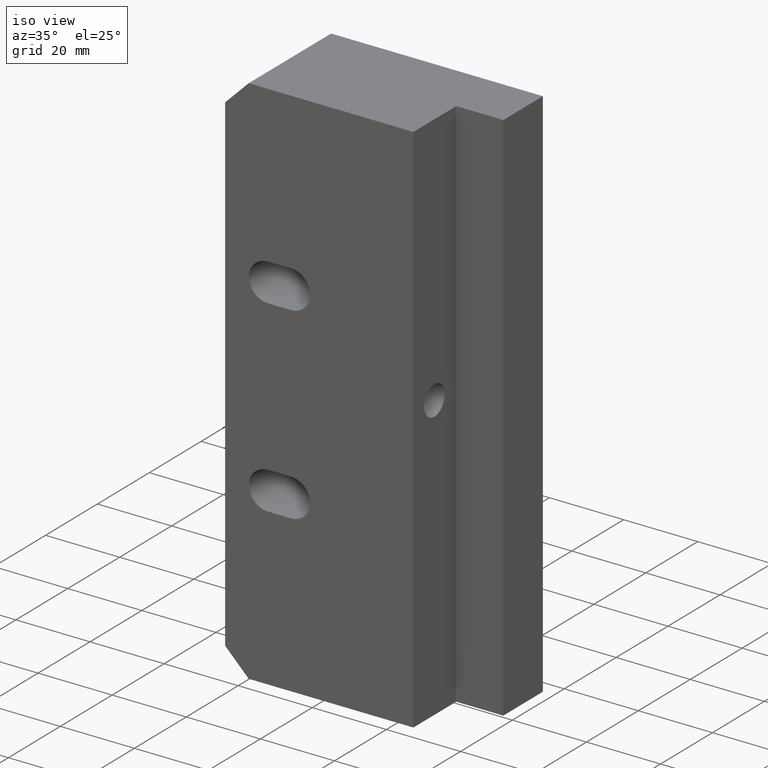
[diagram: clean part render]
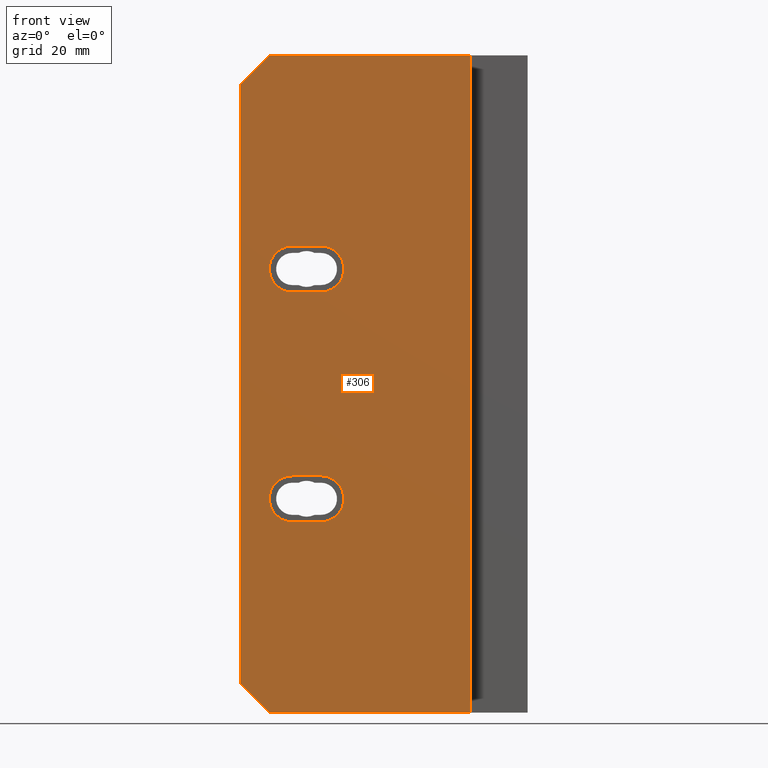
[diagram: tour spotlight — one face highlighted and labeled with its STEP entity id]
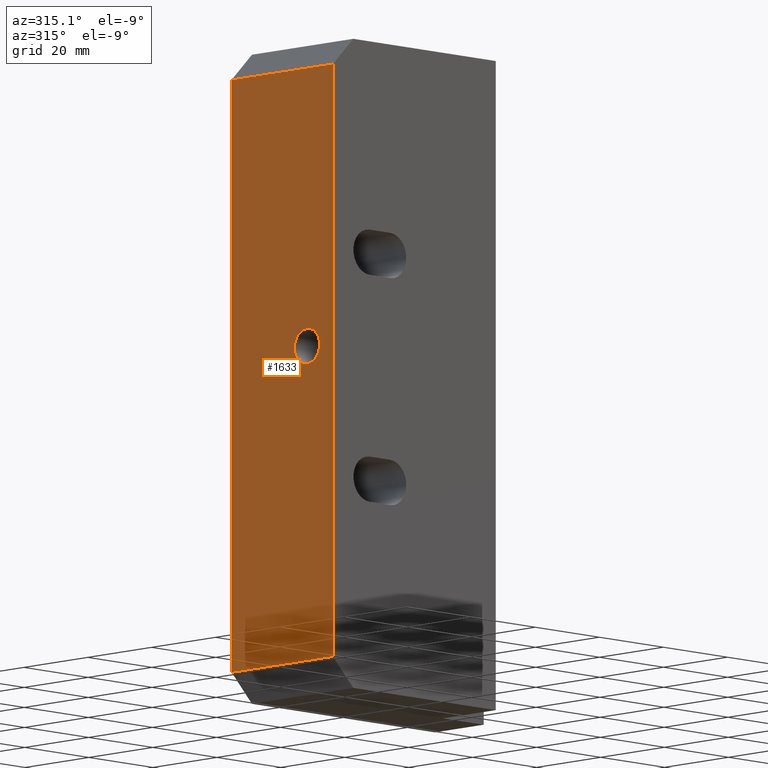
[diagram: tour spotlight — one face highlighted and labeled with its STEP entity id]
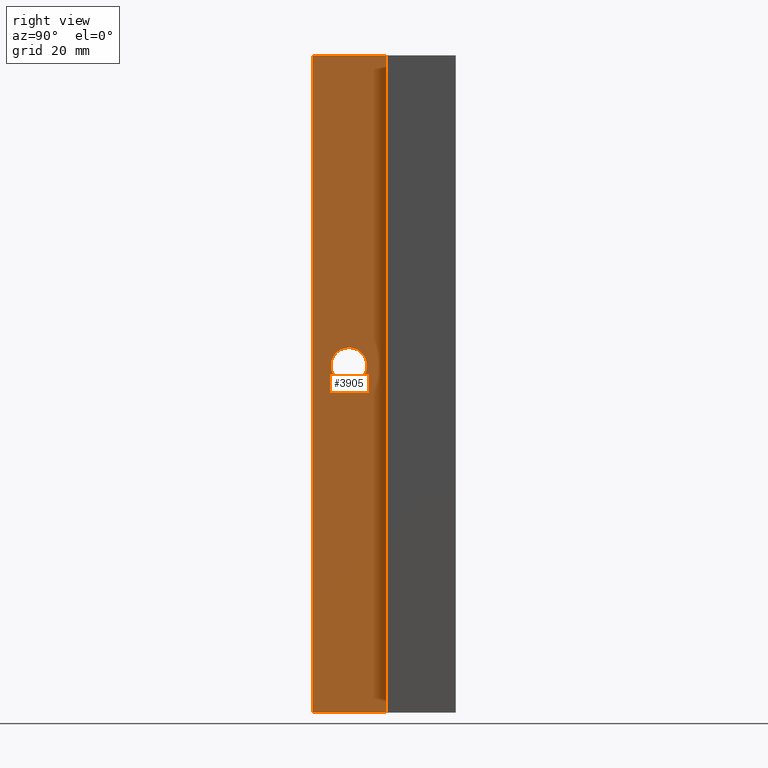
[diagram: tour spotlight — one face highlighted and labeled with its STEP entity id]
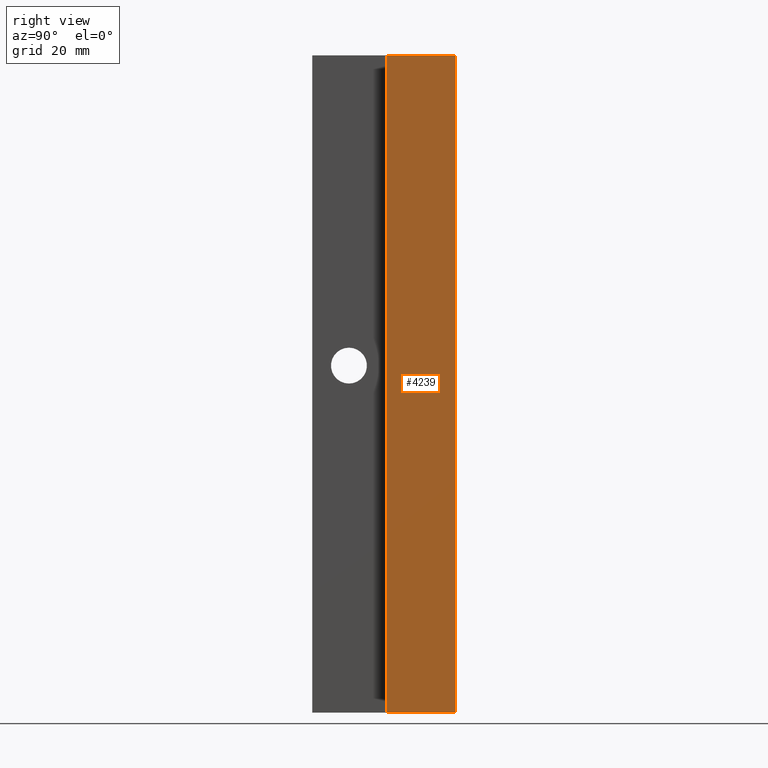
[diagram: tour spotlight — one face highlighted and labeled with its STEP entity id]
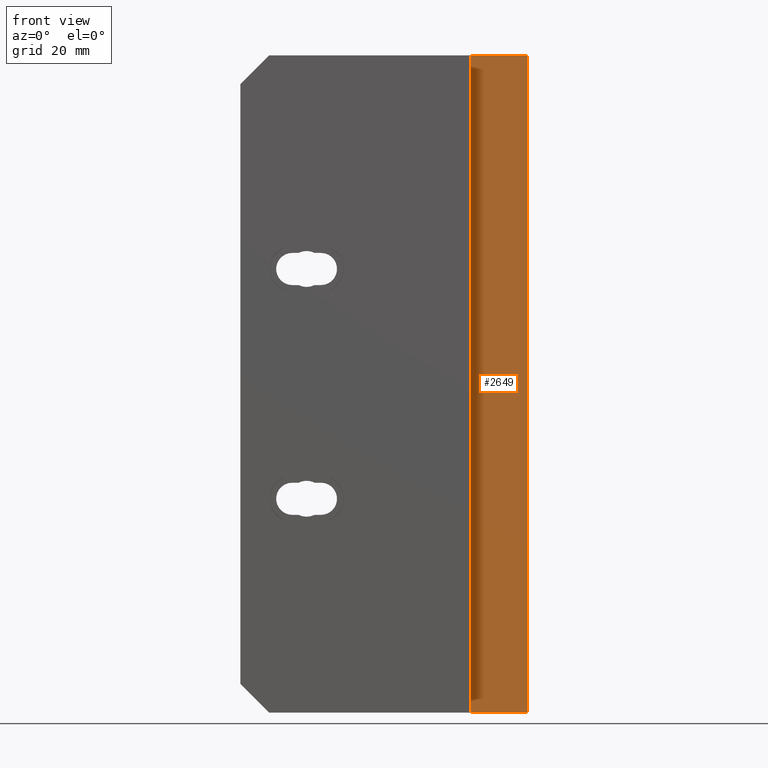
[diagram: tour spotlight — one face highlighted and labeled with its STEP entity id]
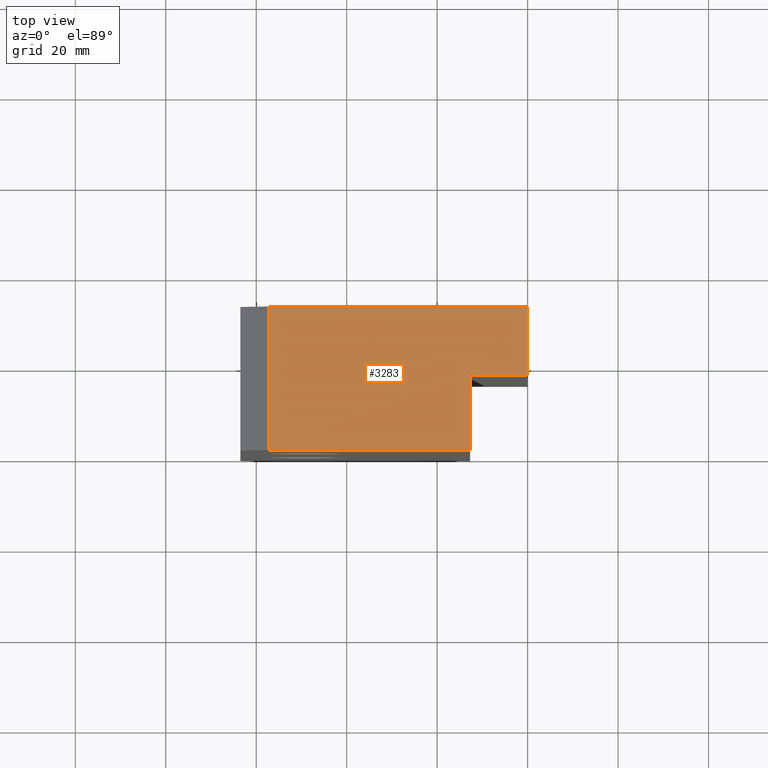
[diagram: tour spotlight — one face highlighted and labeled with its STEP entity id]
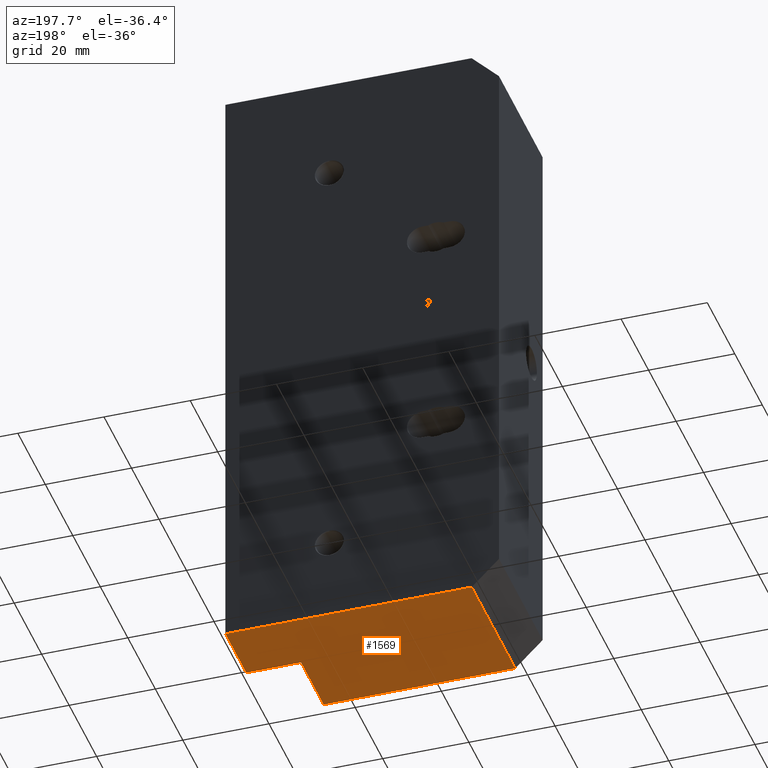
[diagram: tour spotlight — one face highlighted and labeled with its STEP entity id]
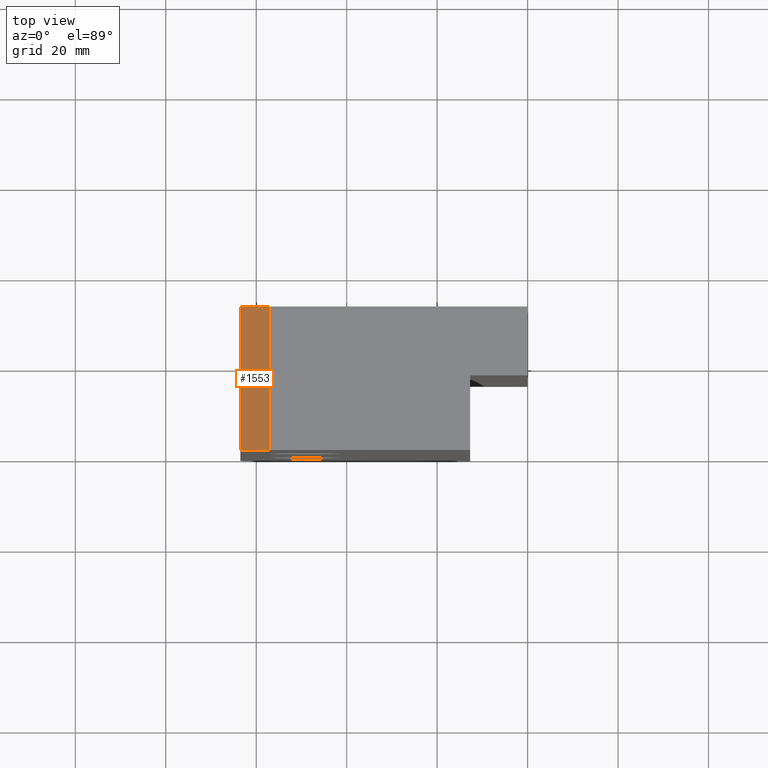
[diagram: tour spotlight — one face highlighted and labeled with its STEP entity id]
A machine part: a face-by-face anatomy tour. The part has 73 B-rep faces; the first image is the clean iso view, then the 8 largest visible faces are spotlighted one at a time (largest first), each with its STEP entity span.

Face 1 — front view, entity #306. In plain terms, the highlighted planar face has unit normal (0, -1, 0).
Definition (entity closure, byte-faithful):
#1 = VERTEX_POINT ( 'NONE', #1374 ) ;
#13 = VERTEX_POINT ( 'NONE', #2380 ) ;
#65 = EDGE_CURVE ( 'NONE', #1, #258, #1172, .T. ) ;
#88 = ORIENTED_EDGE ( 'NONE', *, *, #2915, .F. ) ;
#104 = ORIENTED_EDGE ( 'NONE', *, *, #1020, .F. ) ;
#162 = VECTOR ( 'NONE', #915, 39.37007874015748100 ) ;
#199 = AXIS2_PLACEMENT_3D ( 'NONE', #3077, #1083, #3405 ) ;
#225 = DIRECTION ( 'NONE',  ( 0.0000000000000000000, 0.0000000000000000000, -1.000000000000000000 ) ) ;
#239 = DIRECTION ( 'NONE',  ( 0.0000000000000000000, -1.000000000000000000, 0.0000000000000000000 ) ) ;
#258 = VERTEX_POINT ( 'NONE', #2504 ) ;
#266 = VECTOR ( 'NONE', #1563, 39.37007874015748100 ) ;
#306 = ADVANCED_FACE ( 'NONE', ( #2426, #3306, #4088 ), #1878, .T. ) ;
#432 = CARTESIAN_POINT ( 'NONE',  ( -2.249999999999999600, 0.0000000000000000000, -5.719999999999999800 ) ) ;
#475 = CARTESIAN_POINT ( 'NONE',  ( -2.048734939028663800, -0.0000000000000000000, -3.658999999999444300 ) ) ;
#496 = CARTESIAN_POINT ( 'NONE',  ( -2.500000000000000000, 0.0000000000000000000, -5.470000000000000600 ) ) ;
#552 = LINE ( 'NONE', #1401, #2307 ) ;
#567 = ORIENTED_EDGE ( 'NONE', *, *, #1566, .F. ) ;
#579 = VECTOR ( 'NONE', #1791, 39.37007874015748100 ) ;
#591 = CARTESIAN_POINT ( 'NONE',  ( -2.499999999999999600, 0.0000000000000000000, -0.2500000000000008900 ) ) ;
#780 = LINE ( 'NONE', #475, #579 ) ;
#828 = EDGE_CURVE ( 'NONE', #13, #2529, #1579, .T. ) ;
#837 = ORIENTED_EDGE ( 'NONE', *, *, #999, .F. ) ;
#866 = CARTESIAN_POINT ( 'NONE',  ( -2.249999999999999600, 0.0000000000000000000, 2.048885995248195600E-017 ) ) ;
#869 = ORIENTED_EDGE ( 'NONE', *, *, #3664, .F. ) ;
#897 = DIRECTION ( 'NONE',  ( 0.0000000000000000000, -1.000000000000000000, 0.0000000000000000000 ) ) ;
#915 = DIRECTION ( 'NONE',  ( 0.7071067811865486800, -0.0000000000000000000, -0.7071067811865463500 ) ) ;
#999 = EDGE_CURVE ( 'NONE', #3524, #2286, #552, .T. ) ;
#1020 = EDGE_CURVE ( 'NONE', #258, #2036, #1319, .T. ) ;
#1066 = DIRECTION ( 'NONE',  ( -1.000000000000000000, -0.0000000000000000000, -0.0000000000000000000 ) ) ;
#1071 = ORIENTED_EDGE ( 'NONE', *, *, #3713, .T. ) ;
#1083 = DIRECTION ( 'NONE',  ( 0.0000000000000000000, -1.000000000000000000, 0.0000000000000000000 ) ) ;
#1144 = CIRCLE ( 'NONE', #1514, 0.2000000000000000400 ) ;
#1172 = LINE ( 'NONE', #3398, #1277 ) ;
#1200 = CARTESIAN_POINT ( 'NONE',  ( -2.048734939028663800, -0.0000000000000000000, -3.658999999999444300 ) ) ;
#1213 = EDGE_CURVE ( 'NONE', #1224, #13, #2790, .T. ) ;
#1224 = VERTEX_POINT ( 'NONE', #1200 ) ;
#1236 = AXIS2_PLACEMENT_3D ( 'NONE', #4210, #239, #2549 ) ;
#1263 = LINE ( 'NONE', #1593, #3036 ) ;
#1277 = VECTOR ( 'NONE', #3733, 39.37007874015748100 ) ;
#1299 = AXIS2_PLACEMENT_3D ( 'NONE', #4189, #2189, #225 ) ;
#1318 = EDGE_CURVE ( 'NONE', #4083, #2286, #1263, .T. ) ;
#1319 = CIRCLE ( 'NONE', #199, 0.2000000000000000400 ) ;
#1342 = ORIENTED_EDGE ( 'NONE', *, *, #3174, .F. ) ;
#1374 = CARTESIAN_POINT ( 'NONE',  ( -1.798734939028664200, -0.0000000000000000000, -1.658999999999444900 ) ) ;
#1397 = CARTESIAN_POINT ( 'NONE',  ( -2.048734939028663800, 0.0000000000000000000, -2.058999999999445100 ) ) ;
#1401 = CARTESIAN_POINT ( 'NONE',  ( -2.500000000000000000, 0.0000000000000000000, -5.719999999999999800 ) ) ;
#1457 = LINE ( 'NONE', #1587, #3997 ) ;
#1478 = EDGE_LOOP ( 'NONE', ( #2484, #2012, #567, #2143 ) ) ;
#1510 = ORIENTED_EDGE ( 'NONE', *, *, #2295, .F. ) ;
#1514 = AXIS2_PLACEMENT_3D ( 'NONE', #1576, #3906, #1916 ) ;
#1522 = CIRCLE ( 'NONE', #1882, 0.2000000000000000400 ) ;
#1563 = DIRECTION ( 'NONE',  ( 1.000000000000000000, 0.0000000000000000000, 1.639108796198557400E-016 ) ) ;
#1566 = EDGE_CURVE ( 'NONE', #2529, #3943, #1522, .T. ) ;
#1576 = CARTESIAN_POINT ( 'NONE',  ( -1.798734939028664200, -0.0000000000000000000, -1.858999999999444900 ) ) ;
#1579 = LINE ( 'NONE', #3289, #3251 ) ;
#1587 = CARTESIAN_POINT ( 'NONE',  ( -0.5000000000000000000, -0.0000000000000000000, -6.123233995736774700E-017 ) ) ;
#1593 = CARTESIAN_POINT ( 'NONE',  ( -3.985000000000005200, 0.0000000000000000000, -1.735000000000013600 ) ) ;
#1750 = EDGE_LOOP ( 'NONE', ( #104, #2688, #1342, #1929 ) ) ;
#1791 = DIRECTION ( 'NONE',  ( -1.000000000000000000, -0.0000000000000000000, -0.0000000000000000000 ) ) ;
#1878 = PLANE ( 'NONE',  #1236 ) ;
#1882 = AXIS2_PLACEMENT_3D ( 'NONE', #2888, #897, #3227 ) ;
#1916 = DIRECTION ( 'NONE',  ( 0.0000000000000000000, 0.0000000000000000000, -1.000000000000000000 ) ) ;
#1929 = ORIENTED_EDGE ( 'NONE', *, *, #2419, .F. ) ;
#2008 = LINE ( 'NONE', #3228, #266 ) ;
#2012 = ORIENTED_EDGE ( 'NONE', *, *, #2990, .F. ) ;
#2036 = VERTEX_POINT ( 'NONE', #1397 ) ;
#2046 = CARTESIAN_POINT ( 'NONE',  ( -0.5000000000000001100, 0.0000000000000000000, 3.278217592397113900E-016 ) ) ;
#2112 = VERTEX_POINT ( 'NONE', #2770 ) ;
#2143 = ORIENTED_EDGE ( 'NONE', *, *, #828, .F. ) ;
#2189 = DIRECTION ( 'NONE',  ( 0.0000000000000000000, -1.000000000000000000, 0.0000000000000000000 ) ) ;
#2286 = VERTEX_POINT ( 'NONE', #591 ) ;
#2295 = EDGE_CURVE ( 'NONE', #2914, #2112, #1457, .T. ) ;
#2307 = VECTOR ( 'NONE', #3721, 39.37007874015748100 ) ;
#2338 = LINE ( 'NONE', #2347, #3797 ) ;
#2347 = CARTESIAN_POINT ( 'NONE',  ( -2.048734939028663800, -0.0000000000000000000, -2.058999999999445100 ) ) ;
#2380 = CARTESIAN_POINT ( 'NONE',  ( -2.048734939028663800, 0.0000000000000000000, -4.058999999999444200 ) ) ;
#2419 = EDGE_CURVE ( 'NONE', #2036, #3877, #2338, .T. ) ;
#2426 = FACE_BOUND ( 'NONE', #1750, .T. ) ;
#2484 = ORIENTED_EDGE ( 'NONE', *, *, #1213, .F. ) ;
#2504 = CARTESIAN_POINT ( 'NONE',  ( -2.048734939028663800, -0.0000000000000000000, -1.658999999999444900 ) ) ;
#2529 = VERTEX_POINT ( 'NONE', #3411 ) ;
#2549 = DIRECTION ( 'NONE',  ( 0.0000000000000000000, -0.0000000000000000000, -1.000000000000000000 ) ) ;
#2566 = EDGE_LOOP ( 'NONE', ( #837, #1071, #88, #1510, #869, #3154 ) ) ;
#2688 = ORIENTED_EDGE ( 'NONE', *, *, #65, .F. ) ;
#2730 = CARTESIAN_POINT ( 'NONE',  ( -1.798734939028664200, -0.0000000000000000000, -3.658999999999444300 ) ) ;
#2770 = CARTESIAN_POINT ( 'NONE',  ( -0.4999999999999993300, -0.0000000000000000000, -5.719999999999999800 ) ) ;
#2790 = CIRCLE ( 'NONE', #1299, 0.2000000000000000400 ) ;
#2888 = CARTESIAN_POINT ( 'NONE',  ( -1.798734939028664200, -0.0000000000000000000, -3.858999999999444400 ) ) ;
#2914 = VERTEX_POINT ( 'NONE', #2046 ) ;
#2915 = EDGE_CURVE ( 'NONE', #2112, #2950, #3434, .T. ) ;
#2950 = VERTEX_POINT ( 'NONE', #432 ) ;
#2990 = EDGE_CURVE ( 'NONE', #3943, #1224, #780, .T. ) ;
#3021 = DIRECTION ( 'NONE',  ( 1.000000000000000000, 0.0000000000000000000, 0.0000000000000000000 ) ) ;
#3036 = VECTOR ( 'NONE', #4245, 39.37007874015748100 ) ;
#3077 = CARTESIAN_POINT ( 'NONE',  ( -2.048734939028663800, -0.0000000000000000000, -1.858999999999444900 ) ) ;
#3154 = ORIENTED_EDGE ( 'NONE', *, *, #1318, .T. ) ;
#3174 = EDGE_CURVE ( 'NONE', #3877, #1, #1144, .T. ) ;
#3227 = DIRECTION ( 'NONE',  ( 0.0000000000000000000, 0.0000000000000000000, -1.000000000000000000 ) ) ;
#3228 = CARTESIAN_POINT ( 'NONE',  ( -2.499999999999999600, 0.0000000000000000000, 0.0000000000000000000 ) ) ;
#3237 = CARTESIAN_POINT ( 'NONE',  ( -1.124999999999996000, 0.0000000000000000000, -6.844999999999999800 ) ) ;
#3238 = DIRECTION ( 'NONE',  ( 1.193989507720394800E-016, 0.0000000000000000000, -1.000000000000000000 ) ) ;
#3251 = VECTOR ( 'NONE', #4290, 39.37007874015748100 ) ;
#3289 = CARTESIAN_POINT ( 'NONE',  ( -2.048734939028663800, -0.0000000000000000000, -4.058999999999444200 ) ) ;
#3306 = FACE_BOUND ( 'NONE', #1478, .T. ) ;
#3398 = CARTESIAN_POINT ( 'NONE',  ( -2.048734939028663800, -0.0000000000000000000, -1.658999999999444900 ) ) ;
#3405 = DIRECTION ( 'NONE',  ( 0.0000000000000000000, 0.0000000000000000000, -1.000000000000000000 ) ) ;
#3411 = CARTESIAN_POINT ( 'NONE',  ( -1.798734939028664200, 0.0000000000000000000, -4.058999999999444200 ) ) ;
#3434 = LINE ( 'NONE', #4038, #4212 ) ;
#3524 = VERTEX_POINT ( 'NONE', #496 ) ;
#3646 = CARTESIAN_POINT ( 'NONE',  ( -1.798734939028664200, 0.0000000000000000000, -2.058999999999445100 ) ) ;
#3664 = EDGE_CURVE ( 'NONE', #4083, #2914, #2008, .T. ) ;
#3677 = LINE ( 'NONE', #3237, #162 ) ;
#3713 = EDGE_CURVE ( 'NONE', #3524, #2950, #3677, .T. ) ;
#3721 = DIRECTION ( 'NONE',  ( 9.551916061763159600E-017, 0.0000000000000000000, 1.000000000000000000 ) ) ;
#3733 = DIRECTION ( 'NONE',  ( -1.000000000000000000, -0.0000000000000000000, -0.0000000000000000000 ) ) ;
#3797 = VECTOR ( 'NONE', #3021, 39.37007874015748100 ) ;
#3877 = VERTEX_POINT ( 'NONE', #3646 ) ;
#3906 = DIRECTION ( 'NONE',  ( 0.0000000000000000000, -1.000000000000000000, 0.0000000000000000000 ) ) ;
#3943 = VERTEX_POINT ( 'NONE', #2730 ) ;
#3997 = VECTOR ( 'NONE', #3238, 39.37007874015748100 ) ;
#4038 = CARTESIAN_POINT ( 'NONE',  ( -2.500000000000000000, 0.0000000000000000000, -5.719999999999999800 ) ) ;
#4083 = VERTEX_POINT ( 'NONE', #866 ) ;
#4088 = FACE_OUTER_BOUND ( 'NONE', #2566, .T. ) ;
#4189 = CARTESIAN_POINT ( 'NONE',  ( -2.048734939028663800, -0.0000000000000000000, -3.858999999999444400 ) ) ;
#4210 = CARTESIAN_POINT ( 'NONE',  ( 0.0000000000000000000, 0.0000000000000000000, -5.719999999999999800 ) ) ;
#4212 = VECTOR ( 'NONE', #1066, 39.37007874015748100 ) ;
#4245 = DIRECTION ( 'NONE',  ( -0.7071067811865459100, -0.0000000000000000000, -0.7071067811865491300 ) ) ;
#4290 = DIRECTION ( 'NONE',  ( 1.000000000000000000, 0.0000000000000000000, 0.0000000000000000000 ) ) ;

Face 2 — auxiliary view, entity #1633. In plain terms, the highlighted planar face has unit normal (1, 0, -0).
Definition (entity closure, byte-faithful):
#86 = CARTESIAN_POINT ( 'NONE',  ( -2.499999999999999600, 1.250000000000000000, -0.2500000000000008900 ) ) ;
#196 = CARTESIAN_POINT ( 'NONE',  ( -2.499999999999999600, 0.3200000000000000100, -2.700000000000000200 ) ) ;
#268 = CARTESIAN_POINT ( 'NONE',  ( -2.499999999999999600, 0.3200000000000000100, -2.543750000000000600 ) ) ;
#375 = VERTEX_POINT ( 'NONE', #268 ) ;
#401 = DIRECTION ( 'NONE',  ( -1.000000000000000000, -0.0000000000000000000, 9.551916061763158300E-017 ) ) ;
#421 = DIRECTION ( 'NONE',  ( 0.0000000000000000000, 1.000000000000000000, 0.0000000000000000000 ) ) ;
#496 = CARTESIAN_POINT ( 'NONE',  ( -2.500000000000000000, 0.0000000000000000000, -5.470000000000000600 ) ) ;
#528 = DIRECTION ( 'NONE',  ( 0.0000000000000000000, 0.0000000000000000000, 1.000000000000000000 ) ) ;
#552 = LINE ( 'NONE', #1401, #2307 ) ;
#591 = CARTESIAN_POINT ( 'NONE',  ( -2.499999999999999600, 0.0000000000000000000, -0.2500000000000008900 ) ) ;
#601 = CARTESIAN_POINT ( 'NONE',  ( -2.500000000000000000, 1.250000000000000000, -5.719999999999999800 ) ) ;
#607 = EDGE_CURVE ( 'NONE', #1426, #3524, #3099, .T. ) ;
#622 = VERTEX_POINT ( 'NONE', #4017 ) ;
#784 = ORIENTED_EDGE ( 'NONE', *, *, #1354, .F. ) ;
#848 = CARTESIAN_POINT ( 'NONE',  ( -2.499999999999999600, 1.250000000000000000, -0.2500000000000008900 ) ) ;
#999 = EDGE_CURVE ( 'NONE', #3524, #2286, #552, .T. ) ;
#1017 = EDGE_LOOP ( 'NONE', ( #3520, #4160 ) ) ;
#1131 = EDGE_LOOP ( 'NONE', ( #784, #4145, #1395, #2273 ) ) ;
#1292 = VECTOR ( 'NONE', #421, 39.37007874015748100 ) ;
#1354 = EDGE_CURVE ( 'NONE', #1426, #3055, #3707, .T. ) ;
#1395 = ORIENTED_EDGE ( 'NONE', *, *, #999, .T. ) ;
#1401 = CARTESIAN_POINT ( 'NONE',  ( -2.500000000000000000, 0.0000000000000000000, -5.719999999999999800 ) ) ;
#1426 = VERTEX_POINT ( 'NONE', #3484 ) ;
#1633 = ADVANCED_FACE ( 'NONE', ( #2087, #3859 ), #3600, .F. ) ;
#1696 = CARTESIAN_POINT ( 'NONE',  ( -2.500000000000000000, 1.250000000000000000, -5.470000000000000600 ) ) ;
#1939 = AXIS2_PLACEMENT_3D ( 'NONE', #2377, #401, #2718 ) ;
#1942 = DIRECTION ( 'NONE',  ( -9.551916061763159600E-017, 0.0000000000000000000, -1.000000000000000000 ) ) ;
#2087 = FACE_OUTER_BOUND ( 'NONE', #1131, .T. ) ;
#2273 = ORIENTED_EDGE ( 'NONE', *, *, #3424, .T. ) ;
#2286 = VERTEX_POINT ( 'NONE', #591 ) ;
#2307 = VECTOR ( 'NONE', #3721, 39.37007874015748100 ) ;
#2309 = VECTOR ( 'NONE', #2388, 39.37007874015748100 ) ;
#2377 = CARTESIAN_POINT ( 'NONE',  ( -2.499999999999999600, 0.3200000000000000100, -2.700000000000000200 ) ) ;
#2388 = DIRECTION ( 'NONE',  ( 0.0000000000000000000, -1.000000000000000000, 0.0000000000000000000 ) ) ;
#2466 = EDGE_CURVE ( 'NONE', #622, #375, #3685, .T. ) ;
#2506 = DIRECTION ( 'NONE',  ( -1.000000000000000000, -0.0000000000000000000, 9.551916061763158300E-017 ) ) ;
#2718 = DIRECTION ( 'NONE',  ( 0.0000000000000000000, 0.0000000000000000000, 1.000000000000000000 ) ) ;
#2748 = CIRCLE ( 'NONE', #2917, 0.1562499999999997200 ) ;
#2832 = VECTOR ( 'NONE', #3760, 39.37007874015748100 ) ;
#2917 = AXIS2_PLACEMENT_3D ( 'NONE', #196, #2506, #528 ) ;
#3055 = VERTEX_POINT ( 'NONE', #848 ) ;
#3097 = CARTESIAN_POINT ( 'NONE',  ( -2.500000000000000000, 1.250000000000000000, -5.719999999999999800 ) ) ;
#3099 = LINE ( 'NONE', #1696, #2309 ) ;
#3424 = EDGE_CURVE ( 'NONE', #2286, #3055, #4262, .T. ) ;
#3484 = CARTESIAN_POINT ( 'NONE',  ( -2.500000000000000000, 1.250000000000000000, -5.470000000000000600 ) ) ;
#3520 = ORIENTED_EDGE ( 'NONE', *, *, #4054, .F. ) ;
#3524 = VERTEX_POINT ( 'NONE', #496 ) ;
#3600 = PLANE ( 'NONE',  #4114 ) ;
#3685 = CIRCLE ( 'NONE', #1939, 0.1562499999999997200 ) ;
#3707 = LINE ( 'NONE', #3097, #2832 ) ;
#3721 = DIRECTION ( 'NONE',  ( 9.551916061763159600E-017, 0.0000000000000000000, 1.000000000000000000 ) ) ;
#3760 = DIRECTION ( 'NONE',  ( 9.551916061763159600E-017, 0.0000000000000000000, 1.000000000000000000 ) ) ;
#3859 = FACE_BOUND ( 'NONE', #1017, .T. ) ;
#3931 = DIRECTION ( 'NONE',  ( 1.000000000000000000, 0.0000000000000000000, -9.551916061763159600E-017 ) ) ;
#4017 = CARTESIAN_POINT ( 'NONE',  ( -2.499999999999999600, 0.3200000000000000100, -2.856249999999999700 ) ) ;
#4054 = EDGE_CURVE ( 'NONE', #375, #622, #2748, .T. ) ;
#4114 = AXIS2_PLACEMENT_3D ( 'NONE', #601, #3931, #1942 ) ;
#4145 = ORIENTED_EDGE ( 'NONE', *, *, #607, .T. ) ;
#4160 = ORIENTED_EDGE ( 'NONE', *, *, #2466, .F. ) ;
#4262 = LINE ( 'NONE', #86, #1292 ) ;

Face 3 — right view, entity #3905. In plain terms, the highlighted planar face has unit normal (-1, 0, -0).
Definition (entity closure, byte-faithful):
#54 = EDGE_LOOP ( 'NONE', ( #2559, #3267, #3680, #3109 ) ) ;
#153 = CIRCLE ( 'NONE', #2129, 0.1562499999999997200 ) ;
#251 = AXIS2_PLACEMENT_3D ( 'NONE', #374, #3020, #1024 ) ;
#374 = CARTESIAN_POINT ( 'NONE',  ( -0.5000000000000000000, 0.6500000000000000200, -6.123233995736774700E-017 ) ) ;
#428 = DIRECTION ( 'NONE',  ( 0.0000000000000000000, 0.0000000000000000000, 1.000000000000000000 ) ) ;
#549 = AXIS2_PLACEMENT_3D ( 'NONE', #1673, #4005, #2011 ) ;
#584 = EDGE_CURVE ( 'NONE', #2851, #1018, #153, .T. ) ;
#707 = EDGE_LOOP ( 'NONE', ( #920, #3007 ) ) ;
#745 = CARTESIAN_POINT ( 'NONE',  ( -0.4999999999999998300, 0.3200000000000000100, -2.700000000000000200 ) ) ;
#920 = ORIENTED_EDGE ( 'NONE', *, *, #584, .T. ) ;
#960 = LINE ( 'NONE', #2114, #2623 ) ;
#966 = CARTESIAN_POINT ( 'NONE',  ( -0.4999999999999998300, 0.3200000000000000100, -2.543750000000000600 ) ) ;
#1018 = VERTEX_POINT ( 'NONE', #4053 ) ;
#1024 = DIRECTION ( 'NONE',  ( -1.193989507720394800E-016, 0.0000000000000000000, 1.000000000000000000 ) ) ;
#1138 = LINE ( 'NONE', #3891, #1906 ) ;
#1161 = DIRECTION ( 'NONE',  ( -0.0000000000000000000, -1.000000000000000000, -0.0000000000000000000 ) ) ;
#1175 = CARTESIAN_POINT ( 'NONE',  ( -0.5000000000000000000, 0.6500000000000000200, -6.123233995736774700E-017 ) ) ;
#1188 = EDGE_CURVE ( 'NONE', #3639, #2914, #3968, .T. ) ;
#1457 = LINE ( 'NONE', #1587, #3997 ) ;
#1464 = EDGE_CURVE ( 'NONE', #3360, #2112, #960, .T. ) ;
#1495 = FACE_BOUND ( 'NONE', #707, .T. ) ;
#1587 = CARTESIAN_POINT ( 'NONE',  ( -0.5000000000000000000, -0.0000000000000000000, -6.123233995736774700E-017 ) ) ;
#1673 = CARTESIAN_POINT ( 'NONE',  ( -0.4999999999999998300, 0.3200000000000000100, -2.700000000000000200 ) ) ;
#1906 = VECTOR ( 'NONE', #2568, 39.37007874015748100 ) ;
#1993 = VECTOR ( 'NONE', #3512, 39.37007874015748100 ) ;
#2011 = DIRECTION ( 'NONE',  ( 0.0000000000000000000, 0.0000000000000000000, 1.000000000000000000 ) ) ;
#2046 = CARTESIAN_POINT ( 'NONE',  ( -0.5000000000000001100, 0.0000000000000000000, 3.278217592397113900E-016 ) ) ;
#2112 = VERTEX_POINT ( 'NONE', #2770 ) ;
#2114 = CARTESIAN_POINT ( 'NONE',  ( -0.4999999999999993300, 0.6500000000000000200, -5.719999999999999800 ) ) ;
#2129 = AXIS2_PLACEMENT_3D ( 'NONE', #745, #2735, #428 ) ;
#2184 = CARTESIAN_POINT ( 'NONE',  ( -0.5000000000000000000, 0.6450000000000001300, -6.123233995736774700E-017 ) ) ;
#2295 = EDGE_CURVE ( 'NONE', #2914, #2112, #1457, .T. ) ;
#2559 = ORIENTED_EDGE ( 'NONE', *, *, #1464, .F. ) ;
#2568 = DIRECTION ( 'NONE',  ( -1.193989507720394800E-016, -0.0000000000000000000, 1.000000000000000000 ) ) ;
#2623 = VECTOR ( 'NONE', #1161, 39.37007874015748100 ) ;
#2682 = PLANE ( 'NONE',  #251 ) ;
#2735 = DIRECTION ( 'NONE',  ( -1.000000000000000000, 0.0000000000000000000, -1.193989507720394800E-016 ) ) ;
#2770 = CARTESIAN_POINT ( 'NONE',  ( -0.4999999999999993300, -0.0000000000000000000, -5.719999999999999800 ) ) ;
#2851 = VERTEX_POINT ( 'NONE', #966 ) ;
#2914 = VERTEX_POINT ( 'NONE', #2046 ) ;
#3007 = ORIENTED_EDGE ( 'NONE', *, *, #3309, .T. ) ;
#3020 = DIRECTION ( 'NONE',  ( -1.000000000000000000, 0.0000000000000000000, -1.193989507720394800E-016 ) ) ;
#3053 = CARTESIAN_POINT ( 'NONE',  ( -0.4999999999999993300, 0.6450000000000001300, -5.719999999999999800 ) ) ;
#3109 = ORIENTED_EDGE ( 'NONE', *, *, #2295, .T. ) ;
#3238 = DIRECTION ( 'NONE',  ( 1.193989507720394800E-016, 0.0000000000000000000, -1.000000000000000000 ) ) ;
#3267 = ORIENTED_EDGE ( 'NONE', *, *, #3687, .T. ) ;
#3309 = EDGE_CURVE ( 'NONE', #1018, #2851, #4157, .T. ) ;
#3360 = VERTEX_POINT ( 'NONE', #3053 ) ;
#3512 = DIRECTION ( 'NONE',  ( -0.0000000000000000000, -1.000000000000000000, -0.0000000000000000000 ) ) ;
#3639 = VERTEX_POINT ( 'NONE', #2184 ) ;
#3680 = ORIENTED_EDGE ( 'NONE', *, *, #1188, .T. ) ;
#3687 = EDGE_CURVE ( 'NONE', #3360, #3639, #1138, .T. ) ;
#3891 = CARTESIAN_POINT ( 'NONE',  ( -0.5000000000000000000, 0.6450000000000001300, -5.969947538601992100E-019 ) ) ;
#3905 = ADVANCED_FACE ( 'NONE', ( #1495, #4035 ), #2682, .F. ) ;
#3968 = LINE ( 'NONE', #1175, #1993 ) ;
#3997 = VECTOR ( 'NONE', #3238, 39.37007874015748100 ) ;
#4005 = DIRECTION ( 'NONE',  ( -1.000000000000000000, 0.0000000000000000000, -1.193989507720394800E-016 ) ) ;
#4035 = FACE_OUTER_BOUND ( 'NONE', #54, .T. ) ;
#4053 = CARTESIAN_POINT ( 'NONE',  ( -0.4999999999999998300, 0.3200000000000000100, -2.856249999999999700 ) ) ;
#4157 = CIRCLE ( 'NONE', #549, 0.1562499999999997200 ) ;

Face 4 — right view, entity #4239. In plain terms, the highlighted planar face has unit normal (-1, 0, 0).
Definition (entity closure, byte-faithful):
#62 = LINE ( 'NONE', #2747, #1825 ) ;
#79 = CARTESIAN_POINT ( 'NONE',  ( 0.0000000000000000000, 1.250000000000000000, -5.719999999999999800 ) ) ;
#308 = EDGE_CURVE ( 'NONE', #3034, #1494, #3975, .T. ) ;
#336 = CARTESIAN_POINT ( 'NONE',  ( 0.0000000000000000000, 1.250000000000000000, -5.719999999999999800 ) ) ;
#600 = ORIENTED_EDGE ( 'NONE', *, *, #1886, .F. ) ;
#829 = AXIS2_PLACEMENT_3D ( 'NONE', #336, #1324, #3653 ) ;
#902 = LINE ( 'NONE', #2333, #2565 ) ;
#1215 = DIRECTION ( 'NONE',  ( -0.0000000000000000000, -1.000000000000000000, -0.0000000000000000000 ) ) ;
#1324 = DIRECTION ( 'NONE',  ( -1.000000000000000000, 0.0000000000000000000, 1.432787409264473800E-016 ) ) ;
#1436 = VECTOR ( 'NONE', #1215, 39.37007874015748100 ) ;
#1494 = VERTEX_POINT ( 'NONE', #2835 ) ;
#1775 = EDGE_CURVE ( 'NONE', #1494, #4029, #902, .T. ) ;
#1825 = VECTOR ( 'NONE', #3082, 39.37007874015748100 ) ;
#1886 = EDGE_CURVE ( 'NONE', #2471, #3034, #4125, .T. ) ;
#2023 = CARTESIAN_POINT ( 'NONE',  ( 8.195543980992789700E-016, 1.250000000000000000, 4.097771990496393800E-016 ) ) ;
#2118 = ORIENTED_EDGE ( 'NONE', *, *, #1775, .F. ) ;
#2324 = FACE_OUTER_BOUND ( 'NONE', #3058, .T. ) ;
#2333 = CARTESIAN_POINT ( 'NONE',  ( 8.195543980992789700E-016, 0.6500000000000000200, 4.097771990496393800E-016 ) ) ;
#2395 = DIRECTION ( 'NONE',  ( -1.432787409264473800E-016, -0.0000000000000000000, -1.000000000000000000 ) ) ;
#2429 = ORIENTED_EDGE ( 'NONE', *, *, #308, .F. ) ;
#2464 = VECTOR ( 'NONE', #2395, 39.37007874015748100 ) ;
#2471 = VERTEX_POINT ( 'NONE', #2023 ) ;
#2524 = EDGE_CURVE ( 'NONE', #2471, #4029, #62, .T. ) ;
#2565 = VECTOR ( 'NONE', #2669, 39.37007874015748100 ) ;
#2669 = DIRECTION ( 'NONE',  ( 2.081406101171205400E-017, -0.0000000000000000000, 1.000000000000000000 ) ) ;
#2747 = CARTESIAN_POINT ( 'NONE',  ( 8.195543980992789700E-016, 1.250000000000000000, 4.097771990496393800E-016 ) ) ;
#2835 = CARTESIAN_POINT ( 'NONE',  ( 7.004979691122860600E-016, 0.6500000000000000200, -5.719999999999999800 ) ) ;
#3034 = VERTEX_POINT ( 'NONE', #3818 ) ;
#3058 = EDGE_LOOP ( 'NONE', ( #3481, #2118, #2429, #600 ) ) ;
#3082 = DIRECTION ( 'NONE',  ( -0.0000000000000000000, -1.000000000000000000, -0.0000000000000000000 ) ) ;
#3165 = CARTESIAN_POINT ( 'NONE',  ( 8.195543980992789700E-016, 0.6500000000000000200, 4.097771990496393800E-016 ) ) ;
#3217 = CARTESIAN_POINT ( 'NONE',  ( 0.0000000000000000000, 1.250000000000000000, -5.719999999999999800 ) ) ;
#3481 = ORIENTED_EDGE ( 'NONE', *, *, #2524, .T. ) ;
#3653 = DIRECTION ( 'NONE',  ( 1.432787409264473800E-016, 0.0000000000000000000, 1.000000000000000000 ) ) ;
#3818 = CARTESIAN_POINT ( 'NONE',  ( 0.0000000000000000000, 1.250000000000000000, -5.719999999999999800 ) ) ;
#3965 = PLANE ( 'NONE',  #829 ) ;
#3975 = LINE ( 'NONE', #3217, #1436 ) ;
#4029 = VERTEX_POINT ( 'NONE', #3165 ) ;
#4125 = LINE ( 'NONE', #79, #2464 ) ;
#4239 = ADVANCED_FACE ( 'NONE', ( #2324 ), #3965, .F. ) ;

Face 5 — front view, entity #2649. In plain terms, the highlighted planar face has unit normal (0, 1, 0).
Definition (entity closure, byte-faithful):
#24 = CARTESIAN_POINT ( 'NONE',  ( 8.195543980992789700E-016, 0.6500000000000000200, 4.097771990496393800E-016 ) ) ;
#70 = DIRECTION ( 'NONE',  ( 1.193989507720394800E-016, 0.0000000000000000000, -1.000000000000000000 ) ) ;
#100 = ORIENTED_EDGE ( 'NONE', *, *, #3412, .T. ) ;
#140 = PLANE ( 'NONE',  #3603 ) ;
#173 = LINE ( 'NONE', #2033, #3589 ) ;
#724 = LINE ( 'NONE', #24, #1599 ) ;
#729 = ORIENTED_EDGE ( 'NONE', *, *, #2496, .T. ) ;
#795 = DIRECTION ( 'NONE',  ( 0.0000000000000000000, 1.000000000000000000, 0.0000000000000000000 ) ) ;
#902 = LINE ( 'NONE', #2333, #2565 ) ;
#1060 = DIRECTION ( 'NONE',  ( 1.000000000000000000, 0.0000000000000000000, -0.0000000000000000000 ) ) ;
#1494 = VERTEX_POINT ( 'NONE', #2835 ) ;
#1596 = EDGE_LOOP ( 'NONE', ( #2935, #729, #100, #1733 ) ) ;
#1599 = VECTOR ( 'NONE', #2341, 39.37007874015748100 ) ;
#1635 = VERTEX_POINT ( 'NONE', #3271 ) ;
#1725 = CARTESIAN_POINT ( 'NONE',  ( 7.004979691122860600E-016, 0.6500000000000000200, -5.719999999999999800 ) ) ;
#1733 = ORIENTED_EDGE ( 'NONE', *, *, #1775, .T. ) ;
#1747 = CARTESIAN_POINT ( 'NONE',  ( -0.4949999999999992700, 0.6500000000000000200, -5.719999999999999800 ) ) ;
#1775 = EDGE_CURVE ( 'NONE', #1494, #4029, #902, .T. ) ;
#2033 = CARTESIAN_POINT ( 'NONE',  ( -0.4949999999999992700, 0.6500000000000000200, -5.719999999999999800 ) ) ;
#2281 = VECTOR ( 'NONE', #1060, 39.37007874015748100 ) ;
#2285 = FACE_OUTER_BOUND ( 'NONE', #1596, .T. ) ;
#2333 = CARTESIAN_POINT ( 'NONE',  ( 8.195543980992789700E-016, 0.6500000000000000200, 4.097771990496393800E-016 ) ) ;
#2341 = DIRECTION ( 'NONE',  ( -1.000000000000000000, -0.0000000000000000000, -9.420190780140125400E-016 ) ) ;
#2496 = EDGE_CURVE ( 'NONE', #1635, #2586, #173, .T. ) ;
#2565 = VECTOR ( 'NONE', #2669, 39.37007874015748100 ) ;
#2586 = VERTEX_POINT ( 'NONE', #1747 ) ;
#2649 = ADVANCED_FACE ( 'NONE', ( #2285 ), #140, .F. ) ;
#2669 = DIRECTION ( 'NONE',  ( 2.081406101171205400E-017, -0.0000000000000000000, 1.000000000000000000 ) ) ;
#2835 = CARTESIAN_POINT ( 'NONE',  ( 7.004979691122860600E-016, 0.6500000000000000200, -5.719999999999999800 ) ) ;
#2935 = ORIENTED_EDGE ( 'NONE', *, *, #3284, .T. ) ;
#3129 = DIRECTION ( 'NONE',  ( 0.0000000000000000000, -0.0000000000000000000, 1.000000000000000000 ) ) ;
#3165 = CARTESIAN_POINT ( 'NONE',  ( 8.195543980992789700E-016, 0.6500000000000000200, 4.097771990496393800E-016 ) ) ;
#3271 = CARTESIAN_POINT ( 'NONE',  ( -0.4950000000000000000, 0.6500000000000000200, -5.652224456729759800E-017 ) ) ;
#3284 = EDGE_CURVE ( 'NONE', #4029, #1635, #724, .T. ) ;
#3412 = EDGE_CURVE ( 'NONE', #2586, #1494, #3944, .T. ) ;
#3589 = VECTOR ( 'NONE', #70, 39.37007874015748100 ) ;
#3603 = AXIS2_PLACEMENT_3D ( 'NONE', #4108, #795, #3129 ) ;
#3944 = LINE ( 'NONE', #1725, #2281 ) ;
#4029 = VERTEX_POINT ( 'NONE', #3165 ) ;
#4108 = CARTESIAN_POINT ( 'NONE',  ( 7.004979691122860600E-016, 0.6500000000000000200, -5.719999999999999800 ) ) ;

Face 6 — top view, entity #3283. In plain terms, the highlighted planar face has unit normal (0, 0, -1).
Definition (entity closure, byte-faithful):
#24 = CARTESIAN_POINT ( 'NONE',  ( 8.195543980992789700E-016, 0.6500000000000000200, 4.097771990496393800E-016 ) ) ;
#62 = LINE ( 'NONE', #2747, #1825 ) ;
#266 = VECTOR ( 'NONE', #1563, 39.37007874015748100 ) ;
#331 = AXIS2_PLACEMENT_3D ( 'NONE', #2981, #1336, #3659 ) ;
#352 = CIRCLE ( 'NONE', #1465, 0.005000000000000014800 ) ;
#422 = ORIENTED_EDGE ( 'NONE', *, *, #1188, .F. ) ;
#454 = EDGE_CURVE ( 'NONE', #3639, #1635, #352, .T. ) ;
#504 = EDGE_CURVE ( 'NONE', #2601, #4083, #2893, .T. ) ;
#672 = ORIENTED_EDGE ( 'NONE', *, *, #3284, .F. ) ;
#724 = LINE ( 'NONE', #24, #1599 ) ;
#792 = DIRECTION ( 'NONE',  ( 1.639108796198557400E-016, 0.0000000000000000000, -1.000000000000000000 ) ) ;
#866 = CARTESIAN_POINT ( 'NONE',  ( -2.249999999999999600, 0.0000000000000000000, 2.048885995248195600E-017 ) ) ;
#1109 = DIRECTION ( 'NONE',  ( 0.0000000000000000000, -1.000000000000000000, 0.0000000000000000000 ) ) ;
#1133 = ORIENTED_EDGE ( 'NONE', *, *, #454, .T. ) ;
#1175 = CARTESIAN_POINT ( 'NONE',  ( -0.5000000000000000000, 0.6500000000000000200, -6.123233995736774700E-017 ) ) ;
#1188 = EDGE_CURVE ( 'NONE', #3639, #2914, #3968, .T. ) ;
#1235 = LINE ( 'NONE', #3510, #3893 ) ;
#1336 = DIRECTION ( 'NONE',  ( 1.639108796198557400E-016, 0.0000000000000000000, -1.000000000000000000 ) ) ;
#1465 = AXIS2_PLACEMENT_3D ( 'NONE', #3122, #792, #2789 ) ;
#1563 = DIRECTION ( 'NONE',  ( 1.000000000000000000, 0.0000000000000000000, 1.639108796198557400E-016 ) ) ;
#1599 = VECTOR ( 'NONE', #2341, 39.37007874015748100 ) ;
#1635 = VERTEX_POINT ( 'NONE', #3271 ) ;
#1825 = VECTOR ( 'NONE', #3082, 39.37007874015748100 ) ;
#1844 = DIRECTION ( 'NONE',  ( 1.000000000000000000, 0.0000000000000000000, 1.639108796198557400E-016 ) ) ;
#1893 = VECTOR ( 'NONE', #1109, 39.37007874015748100 ) ;
#1993 = VECTOR ( 'NONE', #3512, 39.37007874015748100 ) ;
#2008 = LINE ( 'NONE', #3228, #266 ) ;
#2023 = CARTESIAN_POINT ( 'NONE',  ( 8.195543980992789700E-016, 1.250000000000000000, 4.097771990496393800E-016 ) ) ;
#2043 = ORIENTED_EDGE ( 'NONE', *, *, #3088, .F. ) ;
#2046 = CARTESIAN_POINT ( 'NONE',  ( -0.5000000000000001100, 0.0000000000000000000, 3.278217592397113900E-016 ) ) ;
#2184 = CARTESIAN_POINT ( 'NONE',  ( -0.5000000000000000000, 0.6450000000000001300, -6.123233995736774700E-017 ) ) ;
#2341 = DIRECTION ( 'NONE',  ( -1.000000000000000000, -0.0000000000000000000, -9.420190780140125400E-016 ) ) ;
#2345 = ORIENTED_EDGE ( 'NONE', *, *, #2524, .F. ) ;
#2471 = VERTEX_POINT ( 'NONE', #2023 ) ;
#2524 = EDGE_CURVE ( 'NONE', #2471, #4029, #62, .T. ) ;
#2601 = VERTEX_POINT ( 'NONE', #2765 ) ;
#2606 = ORIENTED_EDGE ( 'NONE', *, *, #504, .T. ) ;
#2747 = CARTESIAN_POINT ( 'NONE',  ( 8.195543980992789700E-016, 1.250000000000000000, 4.097771990496393800E-016 ) ) ;
#2765 = CARTESIAN_POINT ( 'NONE',  ( -2.249999999999999600, 1.250000000000000000, 4.097771990496389300E-017 ) ) ;
#2789 = DIRECTION ( 'NONE',  ( -1.000000000000000000, 0.0000000000000000000, -1.639108796198552500E-016 ) ) ;
#2849 = ORIENTED_EDGE ( 'NONE', *, *, #3664, .T. ) ;
#2893 = LINE ( 'NONE', #3782, #1893 ) ;
#2914 = VERTEX_POINT ( 'NONE', #2046 ) ;
#2981 = CARTESIAN_POINT ( 'NONE',  ( -2.499999999999999600, 1.250000000000000000, 0.0000000000000000000 ) ) ;
#3082 = DIRECTION ( 'NONE',  ( -0.0000000000000000000, -1.000000000000000000, -0.0000000000000000000 ) ) ;
#3088 = EDGE_CURVE ( 'NONE', #2601, #2471, #1235, .T. ) ;
#3122 = CARTESIAN_POINT ( 'NONE',  ( -0.4950000000000000000, 0.6450000000000001300, 0.0000000000000000000 ) ) ;
#3165 = CARTESIAN_POINT ( 'NONE',  ( 8.195543980992789700E-016, 0.6500000000000000200, 4.097771990496393800E-016 ) ) ;
#3228 = CARTESIAN_POINT ( 'NONE',  ( -2.499999999999999600, 0.0000000000000000000, 0.0000000000000000000 ) ) ;
#3271 = CARTESIAN_POINT ( 'NONE',  ( -0.4950000000000000000, 0.6500000000000000200, -5.652224456729759800E-017 ) ) ;
#3283 = ADVANCED_FACE ( 'NONE', ( #3372 ), #3328, .F. ) ;
#3284 = EDGE_CURVE ( 'NONE', #4029, #1635, #724, .T. ) ;
#3328 = PLANE ( 'NONE',  #331 ) ;
#3372 = FACE_OUTER_BOUND ( 'NONE', #3530, .T. ) ;
#3510 = CARTESIAN_POINT ( 'NONE',  ( -2.499999999999999600, 1.250000000000000000, 0.0000000000000000000 ) ) ;
#3512 = DIRECTION ( 'NONE',  ( -0.0000000000000000000, -1.000000000000000000, -0.0000000000000000000 ) ) ;
#3530 = EDGE_LOOP ( 'NONE', ( #2043, #2606, #2849, #422, #1133, #672, #2345 ) ) ;
#3639 = VERTEX_POINT ( 'NONE', #2184 ) ;
#3659 = DIRECTION ( 'NONE',  ( -1.000000000000000000, 0.0000000000000000000, -1.639108796198557400E-016 ) ) ;
#3664 = EDGE_CURVE ( 'NONE', #4083, #2914, #2008, .T. ) ;
#3782 = CARTESIAN_POINT ( 'NONE',  ( -2.249999999999999600, 1.250000000000000000, 4.097771990496389900E-017 ) ) ;
#3893 = VECTOR ( 'NONE', #1844, 39.37007874015748100 ) ;
#3968 = LINE ( 'NONE', #1175, #1993 ) ;
#4029 = VERTEX_POINT ( 'NONE', #3165 ) ;
#4083 = VERTEX_POINT ( 'NONE', #866 ) ;

Face 7 — auxiliary view, entity #1569. In plain terms, the highlighted planar face has unit normal (0, 0, 1).
Definition (entity closure, byte-faithful):
#154 = DIRECTION ( 'NONE',  ( 0.0000000000000000000, 0.0000000000000000000, 1.000000000000000000 ) ) ;
#200 = CARTESIAN_POINT ( 'NONE',  ( -2.249999999999999600, 1.250000000000000000, -5.719999999999999800 ) ) ;
#308 = EDGE_CURVE ( 'NONE', #3034, #1494, #3975, .T. ) ;
#341 = VECTOR ( 'NONE', #3307, 39.37007874015748100 ) ;
#432 = CARTESIAN_POINT ( 'NONE',  ( -2.249999999999999600, 0.0000000000000000000, -5.719999999999999800 ) ) ;
#484 = ORIENTED_EDGE ( 'NONE', *, *, #1683, .F. ) ;
#575 = CARTESIAN_POINT ( 'NONE',  ( -2.500000000000000000, 1.250000000000000000, -5.719999999999999800 ) ) ;
#767 = ORIENTED_EDGE ( 'NONE', *, *, #308, .T. ) ;
#960 = LINE ( 'NONE', #2114, #2623 ) ;
#1060 = DIRECTION ( 'NONE',  ( 1.000000000000000000, 0.0000000000000000000, -0.0000000000000000000 ) ) ;
#1066 = DIRECTION ( 'NONE',  ( -1.000000000000000000, -0.0000000000000000000, -0.0000000000000000000 ) ) ;
#1114 = VECTOR ( 'NONE', #2301, 39.37007874015748100 ) ;
#1161 = DIRECTION ( 'NONE',  ( -0.0000000000000000000, -1.000000000000000000, -0.0000000000000000000 ) ) ;
#1215 = DIRECTION ( 'NONE',  ( -0.0000000000000000000, -1.000000000000000000, -0.0000000000000000000 ) ) ;
#1225 = DIRECTION ( 'NONE',  ( 0.0000000000000000000, 0.0000000000000000000, 1.000000000000000000 ) ) ;
#1288 = CARTESIAN_POINT ( 'NONE',  ( -2.500000000000000000, 1.250000000000000000, -5.719999999999999800 ) ) ;
#1436 = VECTOR ( 'NONE', #1215, 39.37007874015748100 ) ;
#1464 = EDGE_CURVE ( 'NONE', #3360, #2112, #960, .T. ) ;
#1494 = VERTEX_POINT ( 'NONE', #2835 ) ;
#1507 = CIRCLE ( 'NONE', #3382, 0.005000000000000014800 ) ;
#1569 = ADVANCED_FACE ( 'NONE', ( #4182 ), #4215, .F. ) ;
#1683 = EDGE_CURVE ( 'NONE', #3034, #3618, #1988, .T. ) ;
#1707 = EDGE_CURVE ( 'NONE', #2950, #3618, #3656, .T. ) ;
#1725 = CARTESIAN_POINT ( 'NONE',  ( 7.004979691122860600E-016, 0.6500000000000000200, -5.719999999999999800 ) ) ;
#1747 = CARTESIAN_POINT ( 'NONE',  ( -0.4949999999999992700, 0.6500000000000000200, -5.719999999999999800 ) ) ;
#1811 = ORIENTED_EDGE ( 'NONE', *, *, #1707, .T. ) ;
#1918 = ORIENTED_EDGE ( 'NONE', *, *, #2661, .T. ) ;
#1988 = LINE ( 'NONE', #1288, #1114 ) ;
#2112 = VERTEX_POINT ( 'NONE', #2770 ) ;
#2114 = CARTESIAN_POINT ( 'NONE',  ( -0.4999999999999993300, 0.6500000000000000200, -5.719999999999999800 ) ) ;
#2125 = CARTESIAN_POINT ( 'NONE',  ( -0.4949999999999992700, 0.6450000000000001300, -5.719999999999999800 ) ) ;
#2155 = ORIENTED_EDGE ( 'NONE', *, *, #1464, .T. ) ;
#2281 = VECTOR ( 'NONE', #1060, 39.37007874015748100 ) ;
#2301 = DIRECTION ( 'NONE',  ( -1.000000000000000000, -0.0000000000000000000, -0.0000000000000000000 ) ) ;
#2465 = DIRECTION ( 'NONE',  ( 1.000000000000000000, 0.0000000000000000000, 0.0000000000000000000 ) ) ;
#2586 = VERTEX_POINT ( 'NONE', #1747 ) ;
#2623 = VECTOR ( 'NONE', #1161, 39.37007874015748100 ) ;
#2661 = EDGE_CURVE ( 'NONE', #2586, #3360, #1507, .T. ) ;
#2770 = CARTESIAN_POINT ( 'NONE',  ( -0.4999999999999993300, -0.0000000000000000000, -5.719999999999999800 ) ) ;
#2785 = AXIS2_PLACEMENT_3D ( 'NONE', #575, #1225, #3557 ) ;
#2806 = EDGE_LOOP ( 'NONE', ( #3488, #1811, #484, #767, #4128, #1918, #2155 ) ) ;
#2835 = CARTESIAN_POINT ( 'NONE',  ( 7.004979691122860600E-016, 0.6500000000000000200, -5.719999999999999800 ) ) ;
#2915 = EDGE_CURVE ( 'NONE', #2112, #2950, #3434, .T. ) ;
#2950 = VERTEX_POINT ( 'NONE', #432 ) ;
#2978 = CARTESIAN_POINT ( 'NONE',  ( -2.249999999999999600, 1.250000000000000000, -5.719999999999999800 ) ) ;
#3034 = VERTEX_POINT ( 'NONE', #3818 ) ;
#3053 = CARTESIAN_POINT ( 'NONE',  ( -0.4999999999999993300, 0.6450000000000001300, -5.719999999999999800 ) ) ;
#3217 = CARTESIAN_POINT ( 'NONE',  ( 0.0000000000000000000, 1.250000000000000000, -5.719999999999999800 ) ) ;
#3307 = DIRECTION ( 'NONE',  ( -0.0000000000000000000, 1.000000000000000000, 0.0000000000000000000 ) ) ;
#3360 = VERTEX_POINT ( 'NONE', #3053 ) ;
#3382 = AXIS2_PLACEMENT_3D ( 'NONE', #2125, #154, #2465 ) ;
#3412 = EDGE_CURVE ( 'NONE', #2586, #1494, #3944, .T. ) ;
#3434 = LINE ( 'NONE', #4038, #4212 ) ;
#3488 = ORIENTED_EDGE ( 'NONE', *, *, #2915, .T. ) ;
#3557 = DIRECTION ( 'NONE',  ( 1.000000000000000000, 0.0000000000000000000, -0.0000000000000000000 ) ) ;
#3618 = VERTEX_POINT ( 'NONE', #200 ) ;
#3656 = LINE ( 'NONE', #2978, #341 ) ;
#3818 = CARTESIAN_POINT ( 'NONE',  ( 0.0000000000000000000, 1.250000000000000000, -5.719999999999999800 ) ) ;
#3944 = LINE ( 'NONE', #1725, #2281 ) ;
#3975 = LINE ( 'NONE', #3217, #1436 ) ;
#4038 = CARTESIAN_POINT ( 'NONE',  ( -2.500000000000000000, 0.0000000000000000000, -5.719999999999999800 ) ) ;
#4128 = ORIENTED_EDGE ( 'NONE', *, *, #3412, .F. ) ;
#4182 = FACE_OUTER_BOUND ( 'NONE', #2806, .T. ) ;
#4212 = VECTOR ( 'NONE', #1066, 39.37007874015748100 ) ;
#4215 = PLANE ( 'NONE',  #2785 ) ;

Face 8 — top view, entity #1553. In plain terms, the highlighted planar face has unit normal (0.7071, 0, -0.7071).
Definition (entity closure, byte-faithful):
#86 = CARTESIAN_POINT ( 'NONE',  ( -2.499999999999999600, 1.250000000000000000, -0.2500000000000008900 ) ) ;
#365 = ORIENTED_EDGE ( 'NONE', *, *, #3837, .F. ) ;
#421 = DIRECTION ( 'NONE',  ( 0.0000000000000000000, 1.000000000000000000, 0.0000000000000000000 ) ) ;
#504 = EDGE_CURVE ( 'NONE', #2601, #4083, #2893, .T. ) ;
#591 = CARTESIAN_POINT ( 'NONE',  ( -2.499999999999999600, 0.0000000000000000000, -0.2500000000000008900 ) ) ;
#750 = FACE_OUTER_BOUND ( 'NONE', #3795, .T. ) ;
#848 = CARTESIAN_POINT ( 'NONE',  ( -2.499999999999999600, 1.250000000000000000, -0.2500000000000008900 ) ) ;
#866 = CARTESIAN_POINT ( 'NONE',  ( -2.249999999999999600, 0.0000000000000000000, 2.048885995248195600E-017 ) ) ;
#1109 = DIRECTION ( 'NONE',  ( 0.0000000000000000000, -1.000000000000000000, 0.0000000000000000000 ) ) ;
#1196 = PLANE ( 'NONE',  #2095 ) ;
#1208 = CARTESIAN_POINT ( 'NONE',  ( -2.249999999999999600, 1.250000000000000000, 4.097771990496389900E-017 ) ) ;
#1263 = LINE ( 'NONE', #1593, #3036 ) ;
#1292 = VECTOR ( 'NONE', #421, 39.37007874015748100 ) ;
#1318 = EDGE_CURVE ( 'NONE', #4083, #2286, #1263, .T. ) ;
#1546 = DIRECTION ( 'NONE',  ( 0.7071067811865491300, 0.0000000000000000000, -0.7071067811865459100 ) ) ;
#1553 = ADVANCED_FACE ( 'NONE', ( #750 ), #1196, .F. ) ;
#1593 = CARTESIAN_POINT ( 'NONE',  ( -3.985000000000005200, 0.0000000000000000000, -1.735000000000013600 ) ) ;
#1617 = DIRECTION ( 'NONE',  ( 0.7071067811865459100, -0.0000000000000000000, 0.7071067811865491300 ) ) ;
#1893 = VECTOR ( 'NONE', #1109, 39.37007874015748100 ) ;
#2095 = AXIS2_PLACEMENT_3D ( 'NONE', #1208, #1546, #3865 ) ;
#2286 = VERTEX_POINT ( 'NONE', #591 ) ;
#2601 = VERTEX_POINT ( 'NONE', #2765 ) ;
#2765 = CARTESIAN_POINT ( 'NONE',  ( -2.249999999999999600, 1.250000000000000000, 4.097771990496389300E-017 ) ) ;
#2808 = LINE ( 'NONE', #2951, #3483 ) ;
#2893 = LINE ( 'NONE', #3782, #1893 ) ;
#2951 = CARTESIAN_POINT ( 'NONE',  ( -2.249999999999999600, 1.250000000000000000, 4.097771990496389900E-017 ) ) ;
#3036 = VECTOR ( 'NONE', #4245, 39.37007874015748100 ) ;
#3055 = VERTEX_POINT ( 'NONE', #848 ) ;
#3327 = ORIENTED_EDGE ( 'NONE', *, *, #3424, .F. ) ;
#3424 = EDGE_CURVE ( 'NONE', #2286, #3055, #4262, .T. ) ;
#3483 = VECTOR ( 'NONE', #1617, 39.37007874015748100 ) ;
#3582 = ORIENTED_EDGE ( 'NONE', *, *, #504, .F. ) ;
#3782 = CARTESIAN_POINT ( 'NONE',  ( -2.249999999999999600, 1.250000000000000000, 4.097771990496389900E-017 ) ) ;
#3795 = EDGE_LOOP ( 'NONE', ( #365, #3327, #4033, #3582 ) ) ;
#3837 = EDGE_CURVE ( 'NONE', #3055, #2601, #2808, .T. ) ;
#3865 = DIRECTION ( 'NONE',  ( -0.7071067811865459100, 0.0000000000000000000, -0.7071067811865491300 ) ) ;
#4033 = ORIENTED_EDGE ( 'NONE', *, *, #1318, .F. ) ;
#4083 = VERTEX_POINT ( 'NONE', #866 ) ;
#4245 = DIRECTION ( 'NONE',  ( -0.7071067811865459100, -0.0000000000000000000, -0.7071067811865491300 ) ) ;
#4262 = LINE ( 'NONE', #86, #1292 ) ;